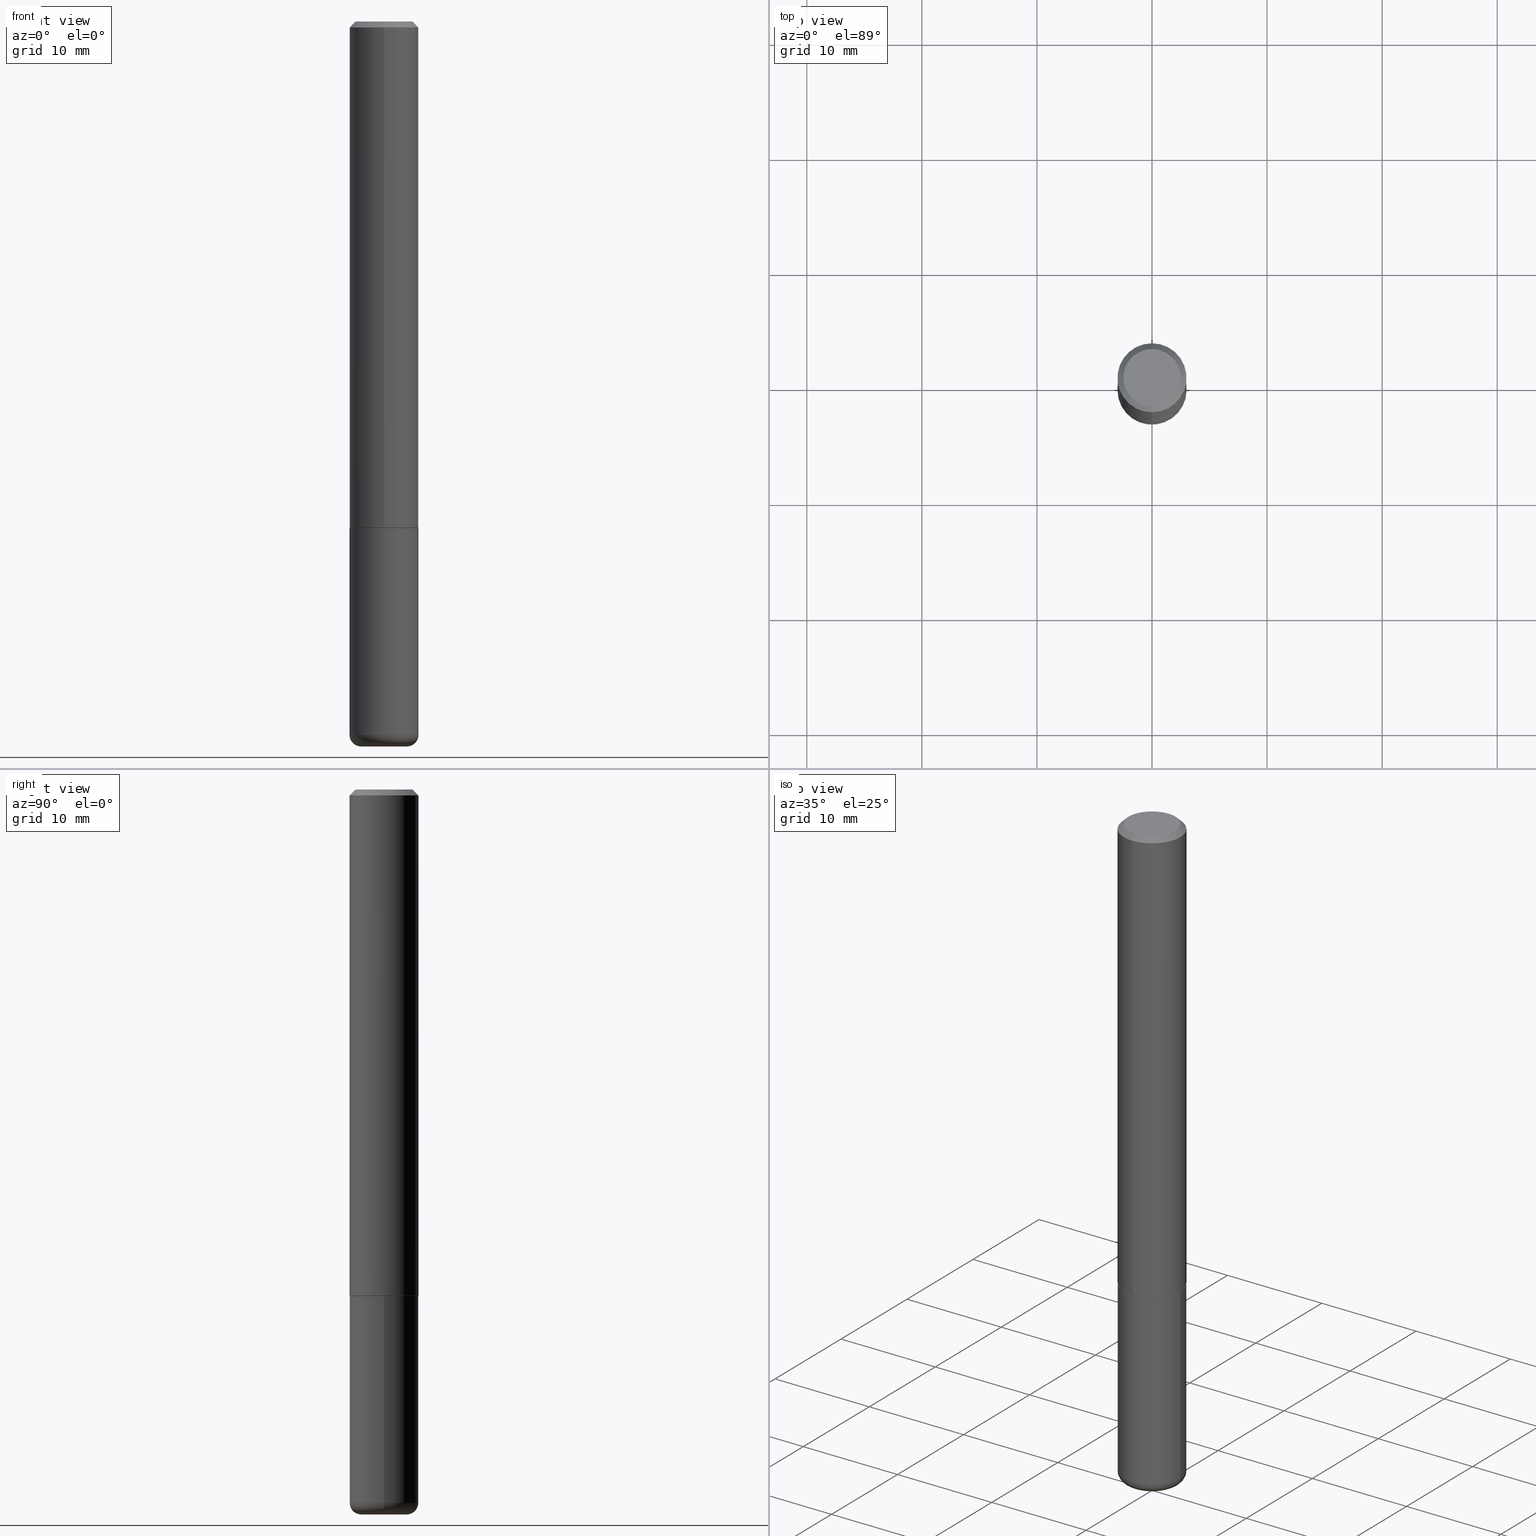
[diagram: canonical four-view strip — front | top / right | iso, engineering-drawing reading convention]
A machine part, canonical four-view strip (front | top / right | iso — engineering-drawing reading convention). The complete STEP part file that produces these views, byte-faithful:
ISO-10303-21;
HEADER;
FILE_DESCRIPTION (( 'STEP AP203' ),
    '1' );
FILE_NAME ('45170.STEP',
    '2024-03-04T15:15:59',
    ( '' ),
    ( '' ),
    'SwSTEP 2.0',
    'SolidWorks 2023',
    '' );
FILE_SCHEMA (( 'CONFIG_CONTROL_DESIGN' ));
ENDSEC;

DATA;
#1 = DATE_AND_TIME ( #62, #88 ) ;
#2 = CIRCLE ( 'NONE', #261, 0.1180999999999999966 ) ;
#3 = ORGANIZATION ( 'UNSPECIFIED', 'UNSPECIFIED', '' ) ;
#4 = ORIENTED_EDGE ( 'NONE', *, *, #162, .F. ) ;
#5 = APPLICATION_CONTEXT ( 'configuration controlled 3d designs of mechanical parts and assemblies' ) ;
#6 = DIRECTION ( 'NONE',  ( -4.851104656540958753E-15, -0.7071067811865492381, -0.7071067811865457964 ) ) ;
#7 = CARTESIAN_POINT ( 'NONE',  ( 0.000000000000000000, 0.000000000000000000, 0.000000000000000000 ) ) ;
#8 = EDGE_LOOP ( 'NONE', ( #90, #374 ) ) ;
#9 = PERSON_AND_ORGANIZATION_ROLE ( 'design_supplier' ) ;
#10 = ORIENTED_EDGE ( 'NONE', *, *, #206, .F. ) ;
#11 = VECTOR ( 'NONE', #364, 39.37007874015748143 ) ;
#12 = CIRCLE ( 'NONE', #263, 0.1181000000000000105 ) ;
#13 = CARTESIAN_POINT ( 'NONE',  ( -6.262385987125453187E-45, 8.934986396310881592E-31, 2.559948239242435609E-16 ) ) ;
#14 = FACE_OUTER_BOUND ( 'NONE', #127, .T. ) ;
#15 = ADVANCED_FACE ( 'NONE', ( #167 ), #128, .T. ) ;
#16 = DIRECTION ( 'NONE',  ( 1.000000000000000000, -6.982962677686266711E-15, 4.876176775795936353E-29 ) ) ;
#17 = CLOSED_SHELL ( 'NONE', ( #373, #38, #15, #220, #79, #295, #301, #273 ) ) ;
#18 = COORDINATED_UNIVERSAL_TIME_OFFSET ( 5, 0, .BEHIND. ) ;
#19 = DIRECTION ( 'NONE',  ( 1.000000000000000000, -6.982962677686272233E-15, 0.000000000000000000 ) ) ;
#20 = DIRECTION ( 'NONE',  ( 6.982962677686265922E-15, 1.000000000000000000, -3.505890868245045303E-15 ) ) ;
#21 = DIRECTION ( 'NONE',  ( -2.446293987951365198E-29, 3.490299631587476868E-15, 1.000000000000000000 ) ) ;
#22 = AXIS2_PLACEMENT_3D ( 'NONE', #245, #144, #19 ) ;
#23 = CIRCLE ( 'NONE', #256, 0.1181000000000000105 ) ;
#24 = ORIENTED_EDGE ( 'NONE', *, *, #307, .F. ) ;
#25 = LINE ( 'NONE', #155, #282 ) ;
#26 = ORIENTED_EDGE ( 'NONE', *, *, #386, .F. ) ;
#27 = EDGE_CURVE ( 'NONE', #37, #156, #63, .T. ) ;
#28 = APPLICATION_CONTEXT ( 'configuration controlled 3d designs of mechanical parts and assemblies' ) ;
#29 = DIRECTION ( 'NONE',  ( 7.105427357601001859E-15, 1.000000000000000000, -3.491481338843145583E-15 ) ) ;
#30 = CIRCLE ( 'NONE', #22, 0.1181000000000000105 ) ;
#31 = PERSON_AND_ORGANIZATION ( #382, #3 ) ;
#32 = ADVANCED_FACE ( 'NONE', ( #298 ), #361, .F. ) ;
#33 = ORIENTED_EDGE ( 'NONE', *, *, #182, .F. ) ;
#34 = ORIENTED_EDGE ( 'NONE', *, *, #162, .T. ) ;
#35 = VECTOR ( 'NONE', #146, 39.37007874015748143 ) ;
#36 = ORIENTED_EDGE ( 'NONE', *, *, #290, .T. ) ;
#37 = VERTEX_POINT ( 'NONE', #385 ) ;
#38 = ADVANCED_FACE ( 'NONE', ( #300 ), #271, .T. ) ;
#39 = DIRECTION ( 'NONE',  ( 2.438088387897960049E-29, -3.491481338843145188E-15, -1.000000000000000000 ) ) ;
#40 = PERSON_AND_ORGANIZATION ( #382, #3 ) ;
#41 = DIRECTION ( 'NONE',  ( -2.446293987951364918E-29, 3.490299631587476868E-15, 1.000000000000000000 ) ) ;
#42 = DIRECTION ( 'NONE',  ( 2.438088387897960049E-29, -3.491481338843145188E-15, -1.000000000000000000 ) ) ;
#43 = PERSON_AND_ORGANIZATION ( #382, #3 ) ;
#44 = CARTESIAN_POINT ( 'NONE',  ( 7.548582654578847672E-16, 0.09809999999999977072, -8.640356993448713013E-17 ) ) ;
#45 = DATE_AND_TIME ( #106, #121 ) ;
#46 = DIRECTION ( 'NONE',  ( -2.445468806185136597E-29, 3.491481338843145583E-15, 1.000000000000000000 ) ) ;
#47 = CC_DESIGN_PERSON_AND_ORGANIZATION_ASSIGNMENT ( #387, #99, ( #101 ) ) ;
#48 = DIRECTION ( 'NONE',  ( -6.982962677686265922E-15, -1.000000000000000000, 2.332918867347791121E-15 ) ) ;
#49 = CARTESIAN_POINT ( 'NONE',  ( 4.237715075328151499E-29, -6.046246051798987735E-15, -1.732300000000000617 ) ) ;
#50 = CARTESIAN_POINT ( 'NONE',  ( 6.065496279980993634E-29, -8.659921164732653758E-15, -2.480299999999999727 ) ) ;
#51 = AXIS2_PLACEMENT_3D ( 'NONE', #221, #317, #292 ) ;
#52 = CARTESIAN_POINT ( 'NONE',  ( -8.177049295570194526E-16, -0.1171000000000060326, -1.732300000000000173 ) ) ;
#53 =( NAMED_UNIT ( * ) PLANE_ANGLE_UNIT ( ) SI_UNIT ( $, .RADIAN. ) );
#54 = ADVANCED_BREP_SHAPE_REPRESENTATION ( '45170', ( #193, #180, #150 ), #74 ) ;
#55 = DIRECTION ( 'NONE',  ( -2.446293987951365198E-29, 3.490299631587476868E-15, 1.000000000000000000 ) ) ;
#56 = VERTEX_POINT ( 'NONE', #304 ) ;
#57 = APPROVAL ( #359, 'UNSPECIFIED' ) ;
#58 = AXIS2_PLACEMENT_3D ( 'NONE', #331, #200, #343 ) ;
#59 = AXIS2_PLACEMENT_3D ( 'NONE', #377, #21, #291 ) ;
#60 = PRODUCT_DEFINITION_SHAPE ( 'NONE', 'NONE',  #101 ) ;
#61 = DIRECTION ( 'NONE',  ( 2.446293987951365198E-29, -3.490299631587476868E-15, -1.000000000000000000 ) ) ;
#62 = CALENDAR_DATE ( 2024, 4, 3 ) ;
#63 = LINE ( 'NONE', #207, #404 ) ;
#64 = ORIENTED_EDGE ( 'NONE', *, *, #168, .F. ) ;
#65 = VECTOR ( 'NONE', #41, 39.37007874015748143 ) ;
#66 = CC_DESIGN_PERSON_AND_ORGANIZATION_ASSIGNMENT ( #76, #139, ( #211 ) ) ;
#67 = LOCAL_TIME ( 10, 15, 59.00000000000000000, #94 ) ;
#68 = DIRECTION ( 'NONE',  ( -2.446293987951365198E-29, 3.490299631587476868E-15, 1.000000000000000000 ) ) ;
#69 = DATE_TIME_ROLE ( 'creation_date' ) ;
#70 = ORIENTED_EDGE ( 'NONE', *, *, #397, .T. ) ;
#71 = LINE ( 'NONE', #75, #254 ) ;
#72 = CC_DESIGN_DATE_AND_TIME_ASSIGNMENT ( #45, #248, ( #211 ) ) ;
#73 = LINE ( 'NONE', #104, #11 ) ;
#74 =( GEOMETRIC_REPRESENTATION_CONTEXT ( 3 ) GLOBAL_UNCERTAINTY_ASSIGNED_CONTEXT ( ( #222 ) ) GLOBAL_UNIT_ASSIGNED_CONTEXT ( ( #151, #53, #231 ) ) REPRESENTATION_CONTEXT ( 'NONE', 'WORKASPACE' ) );
#75 = CARTESIAN_POINT ( 'NONE',  ( 8.246878922347485584E-16, 0.1180999999999999411, -0.02000000000000044797 ) ) ;
#76 = PERSON_AND_ORGANIZATION ( #382, #3 ) ;
#77 = CARTESIAN_POINT ( 'NONE',  ( 4.236285612954512953E-29, -6.048293123277982656E-15, -1.732300000000000173 ) ) ;
#78 = DIRECTION ( 'NONE',  ( 5.024295867787675848E-15, 0.7071067811864956143, 0.7071067811865994202 ) ) ;
#79 = ADVANCED_FACE ( 'NONE', ( #389 ), #102, .T. ) ;
#80 = CONICAL_SURFACE ( 'NONE', #371, 0.1181000000000000105, 0.7853981633974472798 ) ;
#81 = CARTESIAN_POINT ( 'NONE',  ( 0.1180999999999999966, -8.246878922347480654E-16, 5.758764772215000440E-30 ) ) ;
#82 = ORIENTED_EDGE ( 'NONE', *, *, #206, .T. ) ;
#83 = CARTESIAN_POINT ( 'NONE',  ( 8.391509709327007782E-16, 0.1180999999999941402, -1.731300000000000727 ) ) ;
#84 = ORIENTED_EDGE ( 'NONE', *, *, #338, .F. ) ;
#85 = EDGE_CURVE ( 'NONE', #267, #37, #293, .T. ) ;
#86 = LINE ( 'NONE', #226, #235 ) ;
#87 = EDGE_LOOP ( 'NONE', ( #297, #93 ) ) ;
#88 = LOCAL_TIME ( 10, 15, 59.00000000000000000, #161 ) ;
#89 = DIRECTION ( 'NONE',  ( -2.445468806185136877E-29, 3.491481338843145188E-15, 1.000000000000000000 ) ) ;
#90 = ORIENTED_EDGE ( 'NONE', *, *, #85, .T. ) ;
#91 = CARTESIAN_POINT ( 'NONE',  ( 4.236285612954512953E-29, -6.048293123277982656E-15, -1.732300000000000173 ) ) ;
#92 = APPROVAL ( #176, 'UNSPECIFIED' ) ;
#93 = ORIENTED_EDGE ( 'NONE', *, *, #142, .F. ) ;
#94 = COORDINATED_UNIVERSAL_TIME_OFFSET ( 5, 0, .BEHIND. ) ;
#95 = ORIENTED_EDGE ( 'NONE', *, *, #158, .T. ) ;
#96 = AXIS2_PLACEMENT_3D ( 'NONE', #337, #39, #169 ) ;
#97 = AXIS2_PLACEMENT_3D ( 'NONE', #49, #145, #322 ) ;
#98 = DIRECTION ( 'NONE',  ( -2.445468806185136597E-29, 3.491481338843145583E-15, 1.000000000000000000 ) ) ;
#99 = PERSON_AND_ORGANIZATION_ROLE ( 'creator' ) ;
#100 = ORIENTED_EDGE ( 'NONE', *, *, #313, .T. ) ;
#101 = PRODUCT_DEFINITION ( 'UNKNOWN', '', #108, #406 ) ;
#102 = CYLINDRICAL_SURFACE ( 'NONE', #384, 0.1181000000000001077 ) ;
#103 = ORIENTED_EDGE ( 'NONE', *, *, #246, .F. ) ;
#104 = CARTESIAN_POINT ( 'NONE',  ( -8.177049295570194526E-16, -0.1171000000000060326, -1.732300000000000173 ) ) ;
#105 = DIRECTION ( 'NONE',  ( 4.937700262164542520E-15, 0.7071067811865443531, -0.7071067811865506814 ) ) ;
#106 = CALENDAR_DATE ( 2024, 4, 3 ) ;
#107 = DIRECTION ( 'NONE',  ( -2.445468806185136597E-29, 3.491481338843145583E-15, 1.000000000000000000 ) ) ;
#108 = PRODUCT_DEFINITION_FORMATION_WITH_SPECIFIED_SOURCE ( 'ANY', '', #204, .NOT_KNOWN. ) ;
#109 = PERSON_AND_ORGANIZATION ( #382, #3 ) ;
#110 = CARTESIAN_POINT ( 'NONE',  ( -0.1180999999999999966, -6.446173990697430008E-15, -1.732300000000000173 ) ) ;
#111 = ADVANCED_FACE ( 'NONE', ( #243 ), #120, .T. ) ;
#112 = CARTESIAN_POINT ( 'NONE',  ( 0.000000000000000000, 0.000000000000000000, 0.000000000000000000 ) ) ;
#113 = DIRECTION ( 'NONE',  ( 1.000000000000000000, -6.982962677686272233E-15, 0.000000000000000000 ) ) ;
#114 = AXIS2_PLACEMENT_3D ( 'NONE', #216, #408, #413 ) ;
#115 = CARTESIAN_POINT ( 'NONE',  ( 5.969144809017300159E-29, -8.522356799982234543E-15, -2.440900000000000070 ) ) ;
#116 = ORIENTED_EDGE ( 'NONE', *, *, #168, .T. ) ;
#117 = DIRECTION ( 'NONE',  ( -2.446293987951365198E-29, 3.490299631587476868E-15, 1.000000000000000000 ) ) ;
#118 = DIRECTION ( 'NONE',  ( 1.000000000000000000, -6.982962677686265133E-15, 0.000000000000000000 ) ) ;
#119 = EDGE_LOOP ( 'NONE', ( #296, #82, #64, #149 ) ) ;
#120 = TOROIDAL_SURFACE ( 'NONE', #177, 0.07870000000000000606, 0.03939999999999979630 ) ;
#121 = LOCAL_TIME ( 10, 15, 59.00000000000000000, #173 ) ;
#122 = EDGE_CURVE ( 'NONE', #320, #202, #281, .T. ) ;
#123 = DIRECTION ( 'NONE',  ( -6.982962677686265922E-15, -1.000000000000000000, 3.490299631587476868E-15 ) ) ;
#124 = APPROVAL_STATUS ( 'not_yet_approved' ) ;
#125 = ORIENTED_EDGE ( 'NONE', *, *, #228, .F. ) ;
#126 = DIRECTION ( 'NONE',  ( 1.000000000000000000, 0.000000000000000000, 0.000000000000000000 ) ) ;
#127 = EDGE_LOOP ( 'NONE', ( #336, #294, #407, #137 ) ) ;
#128 = CONICAL_SURFACE ( 'NONE', #376, 0.1181000000000000105, 0.7853981633974472798 ) ;
#129 = CONICAL_SURFACE ( 'NONE', #97, 0.1170999999999999958, 0.7853981633973714516 ) ;
#130 = ORIENTED_EDGE ( 'NONE', *, *, #147, .T. ) ;
#131 = ORIENTED_EDGE ( 'NONE', *, *, #318, .T. ) ;
#132 = PERSON_AND_ORGANIZATION_ROLE ( 'design_owner' ) ;
#133 = DIMENSIONAL_EXPONENTS ( 1.000000000000000000, 0.000000000000000000, 0.000000000000000000, 0.000000000000000000, 0.000000000000000000, 0.000000000000000000, 0.000000000000000000 ) ;
#134 = DIRECTION ( 'NONE',  ( -2.446293987951365198E-29, 3.490299631587476868E-15, 1.000000000000000000 ) ) ;
#135 = ADVANCED_FACE ( 'NONE', ( #341 ), #401, .T. ) ;
#136 = AXIS2_PLACEMENT_3D ( 'NONE', #349, #186, #353 ) ;
#137 = ORIENTED_EDGE ( 'NONE', *, *, #344, .T. ) ;
#138 = DIRECTION ( 'NONE',  ( -2.445468806185136597E-29, 3.491481338843145583E-15, 1.000000000000000000 ) ) ;
#139 = PERSON_AND_ORGANIZATION_ROLE ( 'classification_officer' ) ;
#140 = CARTESIAN_POINT ( 'NONE',  ( 4.235268781340199606E-29, -6.042755752167398865E-15, -1.731300000000000283 ) ) ;
#141 = LINE ( 'NONE', #312, #411 ) ;
#142 = EDGE_CURVE ( 'NONE', #56, #316, #233, .T. ) ;
#143 = CALENDAR_DATE ( 2024, 4, 3 ) ;
#144 = DIRECTION ( 'NONE',  ( -2.445468806185136597E-29, 3.491481338843145583E-15, 1.000000000000000000 ) ) ;
#145 = DIRECTION ( 'NONE',  ( -2.446293987951365198E-29, 3.490299631587476868E-15, 1.000000000000000000 ) ) ;
#146 = DIRECTION ( 'NONE',  ( -2.445468806185136877E-29, 3.491481338843145188E-15, 1.000000000000000000 ) ) ;
#147 = EDGE_CURVE ( 'NONE', #202, #320, #345, .T. ) ;
#148 = AXIS2_PLACEMENT_3D ( 'NONE', #272, #303, #268 ) ;
#149 = ORIENTED_EDGE ( 'NONE', *, *, #326, .F. ) ;
#150 = AXIS2_PLACEMENT_3D ( 'NONE', #7, #417, #126 ) ;
#151 =( CONVERSION_BASED_UNIT ( 'INCH', #258 ) LENGTH_UNIT ( ) NAMED_UNIT ( #133 ) );
#152 = ORIENTED_EDGE ( 'NONE', *, *, #397, .F. ) ;
#153 = CARTESIAN_POINT ( 'NONE',  ( 4.892587975902738699E-31, -6.980599263174964533E-17, -0.02000000000000003511 ) ) ;
#154 = EDGE_LOOP ( 'NONE', ( #10, #188, #358, #192 ) ) ;
#155 = CARTESIAN_POINT ( 'NONE',  ( -8.246878922347486570E-16, -0.1181000000000001077, 4.122043864904813594E-16 ) ) ;
#156 = VERTEX_POINT ( 'NONE', #308 ) ;
#157 = AXIS2_PLACEMENT_3D ( 'NONE', #13, #209, #212 ) ;
#158 = EDGE_CURVE ( 'NONE', #225, #160, #2, .T. ) ;
#159 = ORIENTED_EDGE ( 'NONE', *, *, #122, .T. ) ;
#160 = VERTEX_POINT ( 'NONE', #279 ) ;
#161 = COORDINATED_UNIVERSAL_TIME_OFFSET ( 5, 0, .BEHIND. ) ;
#162 = EDGE_CURVE ( 'NONE', #202, #354, #141, .T. ) ;
#163 = ORIENTED_EDGE ( 'NONE', *, *, #158, .F. ) ;
#164 = CC_DESIGN_APPROVAL ( #92, ( #211 ) ) ;
#165 = ORIENTED_EDGE ( 'NONE', *, *, #234, .F. ) ;
#166 = APPLICATION_PROTOCOL_DEFINITION ( 'international standard', 'config_control_design', 1994, #5 ) ;
#167 = FACE_OUTER_BOUND ( 'NONE', #379, .T. ) ;
#168 = EDGE_CURVE ( 'NONE', #156, #418, #210, .T. ) ;
#169 = DIRECTION ( 'NONE',  ( -1.000000000000000000, 6.982962677686265922E-15, -4.876176775795935793E-29 ) ) ;
#170 = CLOSED_SHELL ( 'NONE', ( #332, #111, #32, #196, #253, #135 ) ) ;
#171 = CARTESIAN_POINT ( 'NONE',  ( 8.391509709326788873E-16, 0.1181000000000001077, -4.122043864904813594E-16 ) ) ;
#172 = CARTESIAN_POINT ( 'NONE',  ( 6.065496279980993634E-29, -8.659921164732653758E-15, -2.480299999999999727 ) ) ;
#173 = COORDINATED_UNIVERSAL_TIME_OFFSET ( 5, 0, .BEHIND. ) ;
#174 = FACE_OUTER_BOUND ( 'NONE', #8, .T. ) ;
#175 = CC_DESIGN_PERSON_AND_ORGANIZATION_ASSIGNMENT ( #40, #9, ( #108 ) ) ;
#176 = APPROVAL_STATUS ( 'not_yet_approved' ) ;
#177 = AXIS2_PLACEMENT_3D ( 'NONE', #329, #98, #236 ) ;
#178 = CARTESIAN_POINT ( 'NONE',  ( 4.237715075328151499E-29, -6.046246051798987735E-15, -1.732300000000000617 ) ) ;
#179 = CIRCLE ( 'NONE', #366, 0.03939999999999978936 ) ;
#180 = MANIFOLD_SOLID_BREP ( 'Body-Move/Copy2[2]', #17 ) ;
#181 = CYLINDRICAL_SURFACE ( 'NONE', #247, 0.1180999999999999966 ) ;
#182 = EDGE_CURVE ( 'NONE', #265, #201, #30, .T. ) ;
#183 = DIRECTION ( 'NONE',  ( -6.982962677686265922E-15, -1.000000000000000000, 4.626330217890362236E-15 ) ) ;
#184 = EDGE_LOOP ( 'NONE', ( #409, #95 ) ) ;
#185 = PRODUCT_RELATED_PRODUCT_CATEGORY ( 'detail', '', ( #204 ) ) ;
#186 = DIRECTION ( 'NONE',  ( -2.445468806185136597E-29, 3.491481338843145583E-15, 1.000000000000000000 ) ) ;
#187 = AXIS2_PLACEMENT_3D ( 'NONE', #362, #68, #392 ) ;
#188 = ORIENTED_EDGE ( 'NONE', *, *, #307, .T. ) ;
#189 = AXIS2_PLACEMENT_3D ( 'NONE', #380, #117, #183 ) ;
#190 = APPROVAL_DATE_TIME ( #400, #92 ) ;
#191 = DIRECTION ( 'NONE',  ( -2.445468806185136597E-29, 3.491481338843145583E-15, 1.000000000000000000 ) ) ;
#192 = ORIENTED_EDGE ( 'NONE', *, *, #344, .F. ) ;
#193 = MANIFOLD_SOLID_BREP ( 'Body-Move/Copy2[1]', #170 ) ;
#194 = DIRECTION ( 'NONE',  ( -2.446293987951364918E-29, 3.490299631587476868E-15, 1.000000000000000000 ) ) ;
#195 = ORIENTED_EDGE ( 'NONE', *, *, #147, .F. ) ;
#196 = ADVANCED_FACE ( 'NONE', ( #283 ), #181, .T. ) ;
#197 = PLANE ( 'NONE',  #357 ) ;
#198 = AXIS2_PLACEMENT_3D ( 'NONE', #140, #396, #278 ) ;
#199 = CIRCLE ( 'NONE', #51, 0.03939999999999978936 ) ;
#200 = DIRECTION ( 'NONE',  ( -2.446293987951365198E-29, 3.490299631587476868E-15, 1.000000000000000000 ) ) ;
#201 = VERTEX_POINT ( 'NONE', #218 ) ;
#202 = VERTEX_POINT ( 'NONE', #399 ) ;
#203 = AXIS2_PLACEMENT_3D ( 'NONE', #178, #370, #48 ) ;
#204 = PRODUCT ( '45170', '45170', '', ( #239 ) ) ;
#205 = ORIENTED_EDGE ( 'NONE', *, *, #338, .T. ) ;
#206 = EDGE_CURVE ( 'NONE', #354, #418, #346, .T. ) ;
#207 = CARTESIAN_POINT ( 'NONE',  ( -8.102248135368174406E-16, -0.1181000000000000799, -0.01999999999999961878 ) ) ;
#208 = CALENDAR_DATE ( 2024, 4, 3 ) ;
#209 = DIRECTION ( 'NONE',  ( -2.446293987951365198E-29, 3.490299631587476868E-15, 1.000000000000000000 ) ) ;
#210 = CIRCLE ( 'NONE', #305, 0.1181000000000000105 ) ;
#211 = SECURITY_CLASSIFICATION ( '', '', #368 ) ;
#212 = DIRECTION ( 'NONE',  ( -6.982962677686265922E-15, -1.000000000000000000, 3.490299631587477262E-15 ) ) ;
#213 = APPROVAL_DATE_TIME ( #251, #260 ) ;
#214 = CC_DESIGN_PERSON_AND_ORGANIZATION_ASSIGNMENT ( #302, #132, ( #204 ) ) ;
#215 = CARTESIAN_POINT ( 'NONE',  ( -8.246878922347069460E-16, -0.1181000000000062278, -1.731299999999999617 ) ) ;
#216 = CARTESIAN_POINT ( 'NONE',  ( 6.850286386810210746E-16, 0.09809999999999977072, -2.144009818966088613E-16 ) ) ;
#217 = AXIS2_PLACEMENT_3D ( 'NONE', #367, #42, #280 ) ;
#218 = CARTESIAN_POINT ( 'NONE',  ( -0.1180999999999998995, -7.683205829049557135E-15, -2.440900000000000070 ) ) ;
#219 = CONICAL_SURFACE ( 'NONE', #59, 0.1170999999999999958, 0.7853981633973714516 ) ;
#220 = ADVANCED_FACE ( 'NONE', ( #14 ), #80, .T. ) ;
#221 = CARTESIAN_POINT ( 'NONE',  ( 0.07870000000000000606, -9.071915962716144377E-15, -2.440900000000000070 ) ) ;
#222 = UNCERTAINTY_MEASURE_WITH_UNIT (LENGTH_MEASURE( 1.000000000000000082E-05 ), #151, 'distance_accuracy_value', 'NONE');
#223 = ORIENTED_EDGE ( 'NONE', *, *, #381, .F. ) ;
#224 = FACE_OUTER_BOUND ( 'NONE', #375, .T. ) ;
#225 = VERTEX_POINT ( 'NONE', #110 ) ;
#226 = CARTESIAN_POINT ( 'NONE',  ( -0.1180999999999999966, 8.391509709326782957E-16, -5.809262341591043784E-30 ) ) ;
#227 = CC_DESIGN_APPROVAL ( #260, ( #108 ) ) ;
#228 = EDGE_CURVE ( 'NONE', #257, #354, #276, .T. ) ;
#229 = LINE ( 'NONE', #81, #35 ) ;
#230 = EDGE_LOOP ( 'NONE', ( #350, #195 ) ) ;
#231 =( NAMED_UNIT ( * ) SI_UNIT ( $, .STERADIAN. ) SOLID_ANGLE_UNIT ( ) );
#232 = ORIENTED_EDGE ( 'NONE', *, *, #386, .T. ) ;
#233 = CIRCLE ( 'NONE', #334, 0.07870000000000000606 ) ;
#234 = EDGE_CURVE ( 'NONE', #320, #257, #73, .T. ) ;
#235 = VECTOR ( 'NONE', #89, 39.37007874015748143 ) ;
#236 = DIRECTION ( 'NONE',  ( 1.000000000000000000, -6.982962677686268288E-15, 4.883557194083112901E-29 ) ) ;
#237 = CALENDAR_DATE ( 2024, 4, 3 ) ;
#238 = DIRECTION ( 'NONE',  ( 6.982962677686265922E-15, 1.000000000000000000, -3.505890868245045303E-15 ) ) ;
#239 = MECHANICAL_CONTEXT ( 'NONE', #5, 'mechanical' ) ;
#240 = CARTESIAN_POINT ( 'NONE',  ( 0.000000000000000000, 0.000000000000000000, 0.000000000000000000 ) ) ;
#241 = LOCAL_TIME ( 10, 15, 59.00000000000000000, #390 ) ;
#242 = EDGE_CURVE ( 'NONE', #267, #418, #71, .T. ) ;
#243 = FACE_OUTER_BOUND ( 'NONE', #333, .T. ) ;
#244 = DIRECTION ( 'NONE',  ( 1.000000000000000000, -6.982962677686269077E-15, 0.000000000000000000 ) ) ;
#245 = CARTESIAN_POINT ( 'NONE',  ( 5.969144809017300159E-29, -8.522356799982234543E-15, -2.440900000000000070 ) ) ;
#246 = EDGE_CURVE ( 'NONE', #37, #267, #378, .T. ) ;
#247 = AXIS2_PLACEMENT_3D ( 'NONE', #112, #393, #16 ) ;
#248 = DATE_TIME_ROLE ( 'classification_date' ) ;
#249 = APPROVAL_PERSON_ORGANIZATION ( #31, #260, #266 ) ;
#250 = CARTESIAN_POINT ( 'NONE',  ( 5.969144809017300159E-29, -8.522356799982234543E-15, -2.440900000000000070 ) ) ;
#251 = DATE_AND_TIME ( #208, #67 ) ;
#252 = DIRECTION ( 'NONE',  ( 2.446293987951365198E-29, -3.490299631587476868E-15, -1.000000000000000000 ) ) ;
#253 = ADVANCED_FACE ( 'NONE', ( #339 ), #306, .T. ) ;
#254 = VECTOR ( 'NONE', #105, 39.37007874015748143 ) ;
#255 = CYLINDRICAL_SURFACE ( 'NONE', #136, 0.1180999999999999966 ) ;
#256 = AXIS2_PLACEMENT_3D ( 'NONE', #153, #55, #324 ) ;
#257 = VERTEX_POINT ( 'NONE', #215 ) ;
#258 = LENGTH_MEASURE_WITH_UNIT ( LENGTH_MEASURE( 0.02539999999999999897 ), #405 );
#259 = EDGE_LOOP ( 'NONE', ( #159, #34, #125, #165 ) ) ;
#260 = APPROVAL ( #124, 'UNSPECIFIED' ) ;
#261 = AXIS2_PLACEMENT_3D ( 'NONE', #77, #46, #284 ) ;
#262 = ORIENTED_EDGE ( 'NONE', *, *, #142, .T. ) ;
#263 = AXIS2_PLACEMENT_3D ( 'NONE', #115, #191, #113 ) ;
#264 = CARTESIAN_POINT ( 'NONE',  ( -0.07870000000000000606, -7.963159666939035753E-15, -2.440900000000000070 ) ) ;
#265 = VERTEX_POINT ( 'NONE', #342 ) ;
#266 = APPROVAL_ROLE ( '' ) ;
#267 = VERTEX_POINT ( 'NONE', #44 ) ;
#268 = DIRECTION ( 'NONE',  ( -6.982962677686265133E-15, -1.000000000000000000, 3.490299631587476473E-15 ) ) ;
#269 = CIRCLE ( 'NONE', #287, 0.1180999999999999966 ) ;
#270 = APPROVAL_DATE_TIME ( #1, #57 ) ;
#271 = CYLINDRICAL_SURFACE ( 'NONE', #148, 0.1181000000000001077 ) ;
#272 = CARTESIAN_POINT ( 'NONE',  ( 0.000000000000000000, 0.000000000000000000, 0.000000000000000000 ) ) ;
#273 = ADVANCED_FACE ( 'NONE', ( #174 ), #369, .F. ) ;
#274 = APPLICATION_PROTOCOL_DEFINITION ( 'international standard', 'config_control_design', 1994, #28 ) ;
#275 = DIRECTION ( 'NONE',  ( -6.982962677686265133E-15, -1.000000000000000000, 3.490299631587476473E-15 ) ) ;
#276 = CIRCLE ( 'NONE', #198, 0.1181000000000001909 ) ;
#277 = CIRCLE ( 'NONE', #414, 0.07870000000000000606 ) ;
#278 = DIRECTION ( 'NONE',  ( -6.982962677686265922E-15, -1.000000000000000000, 4.626330217890362236E-15 ) ) ;
#279 = CARTESIAN_POINT ( 'NONE',  ( 0.1180999999999999966, -6.872981015512730130E-15, -1.732300000000000173 ) ) ;
#280 = DIRECTION ( 'NONE',  ( -1.000000000000000000, 6.982962677686265922E-15, -4.876176775795935793E-29 ) ) ;
#281 = CIRCLE ( 'NONE', #58, 0.1170999999999999958 ) ;
#282 = VECTOR ( 'NONE', #194, 39.37007874015748143 ) ;
#283 = FACE_OUTER_BOUND ( 'NONE', #323, .T. ) ;
#284 = DIRECTION ( 'NONE',  ( 1.000000000000000000, -6.982962677686265133E-15, 0.000000000000000000 ) ) ;
#285 = FACE_OUTER_BOUND ( 'NONE', #230, .T. ) ;
#286 = CARTESIAN_POINT ( 'NONE',  ( 8.246878922347485584E-16, 0.1180999999999999411, -0.02000000000000044797 ) ) ;
#287 = AXIS2_PLACEMENT_3D ( 'NONE', #91, #410, #118 ) ;
#288 = CARTESIAN_POINT ( 'NONE',  ( 0.07870000000000000606, -9.209480327466562014E-15, -2.480299999999999727 ) ) ;
#289 = ORIENTED_EDGE ( 'NONE', *, *, #290, .F. ) ;
#290 = EDGE_CURVE ( 'NONE', #56, #201, #179, .T. ) ;
#291 = DIRECTION ( 'NONE',  ( -6.982962677686265922E-15, -1.000000000000000000, 2.332918867347791121E-15 ) ) ;
#292 = DIRECTION ( 'NONE',  ( 1.000000000000000000, -6.982962677686266711E-15, 0.000000000000000000 ) ) ;
#293 = CIRCLE ( 'NONE', #187, 0.09809999999999977072 ) ;
#294 = ORIENTED_EDGE ( 'NONE', *, *, #85, .F. ) ;
#295 = ADVANCED_FACE ( 'NONE', ( #224 ), #129, .T. ) ;
#296 = ORIENTED_EDGE ( 'NONE', *, *, #228, .T. ) ;
#297 = ORIENTED_EDGE ( 'NONE', *, *, #313, .F. ) ;
#298 = FACE_OUTER_BOUND ( 'NONE', #184, .T. ) ;
#299 = APPROVAL_PERSON_ORGANIZATION ( #109, #92, #311 ) ;
#300 = FACE_OUTER_BOUND ( 'NONE', #119, .T. ) ;
#301 = ADVANCED_FACE ( 'NONE', ( #285 ), #197, .F. ) ;
#302 = PERSON_AND_ORGANIZATION ( #382, #3 ) ;
#303 = DIRECTION ( 'NONE',  ( -2.446293987951365198E-29, 3.490299631587476868E-15, 1.000000000000000000 ) ) ;
#304 = CARTESIAN_POINT ( 'NONE',  ( -0.07870000000000000606, -7.891964930369506840E-15, -2.480299999999999727 ) ) ;
#305 = AXIS2_PLACEMENT_3D ( 'NONE', #309, #314, #395 ) ;
#306 = TOROIDAL_SURFACE ( 'NONE', #412, 0.07870000000000000606, 0.03939999999999979630 ) ;
#307 = EDGE_CURVE ( 'NONE', #354, #257, #352, .T. ) ;
#308 = CARTESIAN_POINT ( 'NONE',  ( -8.102248135368174406E-16, -0.1181000000000000799, -0.01999999999999961878 ) ) ;
#309 = CARTESIAN_POINT ( 'NONE',  ( 4.892587975902738699E-31, -6.980599263174964533E-17, -0.02000000000000003511 ) ) ;
#310 = DIRECTION ( 'NONE',  ( 1.000000000000000000, -6.982962677686268288E-15, 4.883557194083112901E-29 ) ) ;
#311 = APPROVAL_ROLE ( '' ) ;
#312 = CARTESIAN_POINT ( 'NONE',  ( 8.320455435751194916E-16, 0.1170999999999939450, -1.732300000000000839 ) ) ;
#313 = EDGE_CURVE ( 'NONE', #316, #56, #277, .T. ) ;
#314 = DIRECTION ( 'NONE',  ( -2.446293987951365198E-29, 3.490299631587476868E-15, 1.000000000000000000 ) ) ;
#315 = DIRECTION ( 'NONE',  ( -2.445468806185136597E-29, 3.491481338843145583E-15, 1.000000000000000000 ) ) ;
#316 = VERTEX_POINT ( 'NONE', #288 ) ;
#317 = DIRECTION ( 'NONE',  ( -6.982962677686266711E-15, -1.000000000000000000, 3.491481338843145583E-15 ) ) ;
#318 = EDGE_CURVE ( 'NONE', #201, #265, #12, .T. ) ;
#319 = APPROVAL_PERSON_ORGANIZATION ( #330, #57, #415 ) ;
#320 = VERTEX_POINT ( 'NONE', #52 ) ;
#321 = SHAPE_DEFINITION_REPRESENTATION ( #60, #54 ) ;
#322 = DIRECTION ( 'NONE',  ( -6.982962677686265922E-15, -1.000000000000000000, 2.332918867347791121E-15 ) ) ;
#323 = EDGE_LOOP ( 'NONE', ( #26, #131, #70, #163 ) ) ;
#324 = DIRECTION ( 'NONE',  ( -6.982962677686265922E-15, -1.000000000000000000, 3.505890868245045303E-15 ) ) ;
#325 = ORIENTED_EDGE ( 'NONE', *, *, #27, .T. ) ;
#326 = EDGE_CURVE ( 'NONE', #257, #156, #25, .T. ) ;
#327 = CARTESIAN_POINT ( 'NONE',  ( 4.237715075328151499E-29, -6.046246051798987735E-15, -1.732300000000000617 ) ) ;
#328 = EDGE_LOOP ( 'NONE', ( #289, #262, #205, #360 ) ) ;
#329 = CARTESIAN_POINT ( 'NONE',  ( 5.969144809017300159E-29, -8.522356799982234543E-15, -2.440900000000000070 ) ) ;
#330 = PERSON_AND_ORGANIZATION ( #382, #3 ) ;
#331 = CARTESIAN_POINT ( 'NONE',  ( 4.237715075328151499E-29, -6.046246051798987735E-15, -1.732300000000000617 ) ) ;
#332 = ADVANCED_FACE ( 'NONE', ( #355 ), #255, .T. ) ;
#333 = EDGE_LOOP ( 'NONE', ( #100, #36, #33, #84 ) ) ;
#334 = AXIS2_PLACEMENT_3D ( 'NONE', #172, #107, #244 ) ;
#335 = CC_DESIGN_SECURITY_CLASSIFICATION ( #211, ( #108 ) ) ;
#336 = ORIENTED_EDGE ( 'NONE', *, *, #27, .F. ) ;
#337 = CARTESIAN_POINT ( 'NONE',  ( 4.236285612954512953E-29, -6.048293123277982656E-15, -1.732300000000000173 ) ) ;
#338 = EDGE_CURVE ( 'NONE', #316, #265, #199, .T. ) ;
#339 = FACE_OUTER_BOUND ( 'NONE', #328, .T. ) ;
#340 = CC_DESIGN_APPROVAL ( #57, ( #101 ) ) ;
#341 = FACE_OUTER_BOUND ( 'NONE', #87, .T. ) ;
#342 = CARTESIAN_POINT ( 'NONE',  ( 0.1180999999999998995, -9.347044692216981228E-15, -2.440900000000000070 ) ) ;
#343 = DIRECTION ( 'NONE',  ( -6.982962677686265922E-15, -1.000000000000000000, 2.332918867347791121E-15 ) ) ;
#344 = EDGE_CURVE ( 'NONE', #418, #156, #23, .T. ) ;
#345 = CIRCLE ( 'NONE', #203, 0.1170999999999999958 ) ;
#346 = LINE ( 'NONE', #171, #65 ) ;
#347 = DIRECTION ( 'NONE',  ( -1.000000000000000000, 7.105427357601014480E-15, 0.000000000000000000 ) ) ;
#348 = ORIENTED_EDGE ( 'NONE', *, *, #182, .T. ) ;
#349 = CARTESIAN_POINT ( 'NONE',  ( 0.000000000000000000, 0.000000000000000000, 0.000000000000000000 ) ) ;
#350 = ORIENTED_EDGE ( 'NONE', *, *, #122, .F. ) ;
#351 = DIRECTION ( 'NONE',  ( 1.000000000000000000, -6.982962677686269077E-15, 0.000000000000000000 ) ) ;
#352 = CIRCLE ( 'NONE', #189, 0.1181000000000001909 ) ;
#353 = DIRECTION ( 'NONE',  ( 1.000000000000000000, -6.982962677686266711E-15, 4.876176775795936353E-29 ) ) ;
#354 = VERTEX_POINT ( 'NONE', #83 ) ;
#355 = FACE_OUTER_BOUND ( 'NONE', #388, .T. ) ;
#356 = ORIENTED_EDGE ( 'NONE', *, *, #234, .T. ) ;
#357 = AXIS2_PLACEMENT_3D ( 'NONE', #327, #402, #123 ) ;
#358 = ORIENTED_EDGE ( 'NONE', *, *, #326, .T. ) ;
#359 = APPROVAL_STATUS ( 'not_yet_approved' ) ;
#360 = ORIENTED_EDGE ( 'NONE', *, *, #318, .F. ) ;
#361 = PLANE ( 'NONE',  #96 ) ;
#362 = CARTESIAN_POINT ( 'NONE',  ( -6.262385987125453187E-45, 8.934986396310881592E-31, 2.559948239242435609E-16 ) ) ;
#363 = DATE_AND_TIME ( #237, #241 ) ;
#364 = DIRECTION ( 'NONE',  ( -4.937700262164168600E-15, -0.7071067811864907293, 0.7071067811866043051 ) ) ;
#365 = CARTESIAN_POINT ( 'NONE',  ( 4.892587975902738699E-31, -6.980599263174964533E-17, -0.02000000000000003511 ) ) ;
#366 = AXIS2_PLACEMENT_3D ( 'NONE', #264, #29, #347 ) ;
#367 = CARTESIAN_POINT ( 'NONE',  ( 1.808968345109430748E-28, 8.559399238534064067E-15, -2.480300000000000171 ) ) ;
#368 = SECURITY_CLASSIFICATION_LEVEL ( 'unclassified' ) ;
#369 = PLANE ( 'NONE',  #114 ) ;
#370 = DIRECTION ( 'NONE',  ( -2.446293987951365198E-29, 3.490299631587476868E-15, 1.000000000000000000 ) ) ;
#371 = AXIS2_PLACEMENT_3D ( 'NONE', #365, #252, #20 ) ;
#372 = FACE_OUTER_BOUND ( 'NONE', #259, .T. ) ;
#373 = ADVANCED_FACE ( 'NONE', ( #372 ), #219, .T. ) ;
#374 = ORIENTED_EDGE ( 'NONE', *, *, #246, .T. ) ;
#375 = EDGE_LOOP ( 'NONE', ( #4, #130, #356, #24 ) ) ;
#376 = AXIS2_PLACEMENT_3D ( 'NONE', #383, #61, #238 ) ;
#377 = CARTESIAN_POINT ( 'NONE',  ( 4.237715075328151499E-29, -6.046246051798987735E-15, -1.732300000000000617 ) ) ;
#378 = CIRCLE ( 'NONE', #157, 0.09809999999999977072 ) ;
#379 = EDGE_LOOP ( 'NONE', ( #103, #325, #116, #416 ) ) ;
#380 = CARTESIAN_POINT ( 'NONE',  ( 4.235268781340199606E-29, -6.042755752167398865E-15, -1.731300000000000283 ) ) ;
#381 = EDGE_CURVE ( 'NONE', #160, #225, #269, .T. ) ;
#382 = PERSON ( 'UNSPECIFIED', 'UNSPECIFIED', 'UNSPECIFIED', ('UNSPECIFIED'), ('UNSPECIFIED'), ('UNSPECIFIED') ) ;
#383 = CARTESIAN_POINT ( 'NONE',  ( 4.892587975902738699E-31, -6.980599263174964533E-17, -0.02000000000000003511 ) ) ;
#384 = AXIS2_PLACEMENT_3D ( 'NONE', #240, #134, #275 ) ;
#385 = CARTESIAN_POINT ( 'NONE',  ( -7.416198335591014190E-16, -0.09809999999999977072, 5.983932177829742273E-16 ) ) ;
#386 = EDGE_CURVE ( 'NONE', #201, #225, #86, .T. ) ;
#387 = PERSON_AND_ORGANIZATION ( #382, #3 ) ;
#388 = EDGE_LOOP ( 'NONE', ( #348, #232, #223, #152 ) ) ;
#389 = FACE_OUTER_BOUND ( 'NONE', #154, .T. ) ;
#390 = COORDINATED_UNIVERSAL_TIME_OFFSET ( 5, 0, .BEHIND. ) ;
#391 = CC_DESIGN_DATE_AND_TIME_ASSIGNMENT ( #363, #69, ( #101 ) ) ;
#392 = DIRECTION ( 'NONE',  ( -6.982962677686265922E-15, -1.000000000000000000, 3.490299631587477262E-15 ) ) ;
#393 = DIRECTION ( 'NONE',  ( -2.445468806185136597E-29, 3.491481338843145583E-15, 1.000000000000000000 ) ) ;
#394 = PERSON_AND_ORGANIZATION_ROLE ( 'creator' ) ;
#395 = DIRECTION ( 'NONE',  ( -6.982962677686265922E-15, -1.000000000000000000, 3.505890868245045303E-15 ) ) ;
#396 = DIRECTION ( 'NONE',  ( -2.446293987951365198E-29, 3.490299631587476868E-15, 1.000000000000000000 ) ) ;
#397 = EDGE_CURVE ( 'NONE', #265, #160, #229, .T. ) ;
#398 = LOCAL_TIME ( 10, 15, 59.00000000000000000, #18 ) ;
#399 = CARTESIAN_POINT ( 'NONE',  ( 8.355982572539213762E-16, 0.1170999999999939728, -1.732300000000000839 ) ) ;
#400 = DATE_AND_TIME ( #143, #398 ) ;
#401 = PLANE ( 'NONE',  #217 ) ;
#402 = DIRECTION ( 'NONE',  ( -2.446293987951364918E-29, 3.490299631587476868E-15, 1.000000000000000000 ) ) ;
#403 = CC_DESIGN_PERSON_AND_ORGANIZATION_ASSIGNMENT ( #43, #394, ( #108 ) ) ;
#404 = VECTOR ( 'NONE', #6, 39.37007874015748143 ) ;
#405 =( LENGTH_UNIT ( ) NAMED_UNIT ( * ) SI_UNIT ( $, .METRE. ) );
#406 = DESIGN_CONTEXT ( 'detailed design', #28, 'design' ) ;
#407 = ORIENTED_EDGE ( 'NONE', *, *, #242, .T. ) ;
#408 = DIRECTION ( 'NONE',  ( 2.446293987951364918E-29, -3.490299631587476868E-15, -1.000000000000000000 ) ) ;
#409 = ORIENTED_EDGE ( 'NONE', *, *, #381, .T. ) ;
#410 = DIRECTION ( 'NONE',  ( -2.445468806185136597E-29, 3.491481338843145583E-15, 1.000000000000000000 ) ) ;
#411 = VECTOR ( 'NONE', #78, 39.37007874015748143 ) ;
#412 = AXIS2_PLACEMENT_3D ( 'NONE', #250, #138, #310 ) ;
#413 = DIRECTION ( 'NONE',  ( 6.982962677686265922E-15, 1.000000000000000000, -3.490299631587476868E-15 ) ) ;
#414 = AXIS2_PLACEMENT_3D ( 'NONE', #50, #315, #351 ) ;
#415 = APPROVAL_ROLE ( '' ) ;
#416 = ORIENTED_EDGE ( 'NONE', *, *, #242, .F. ) ;
#417 = DIRECTION ( 'NONE',  ( 0.000000000000000000, 0.000000000000000000, 1.000000000000000000 ) ) ;
#418 = VERTEX_POINT ( 'NONE', #286 ) ;
ENDSEC;
END-ISO-10303-21;
